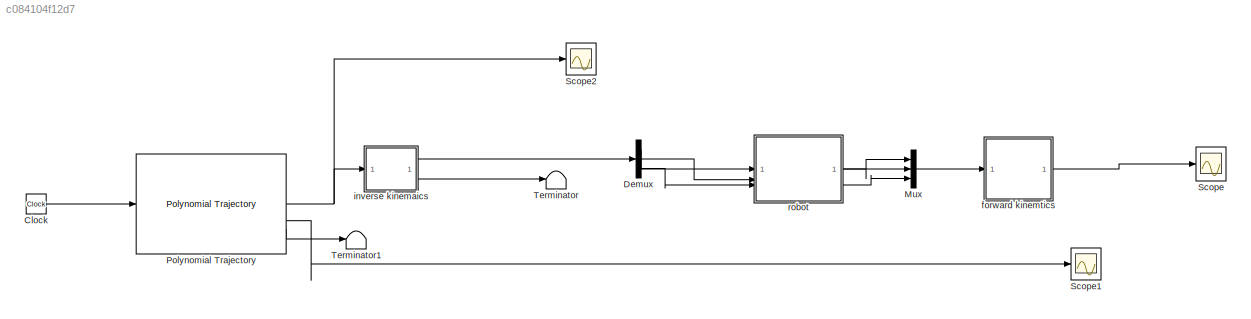
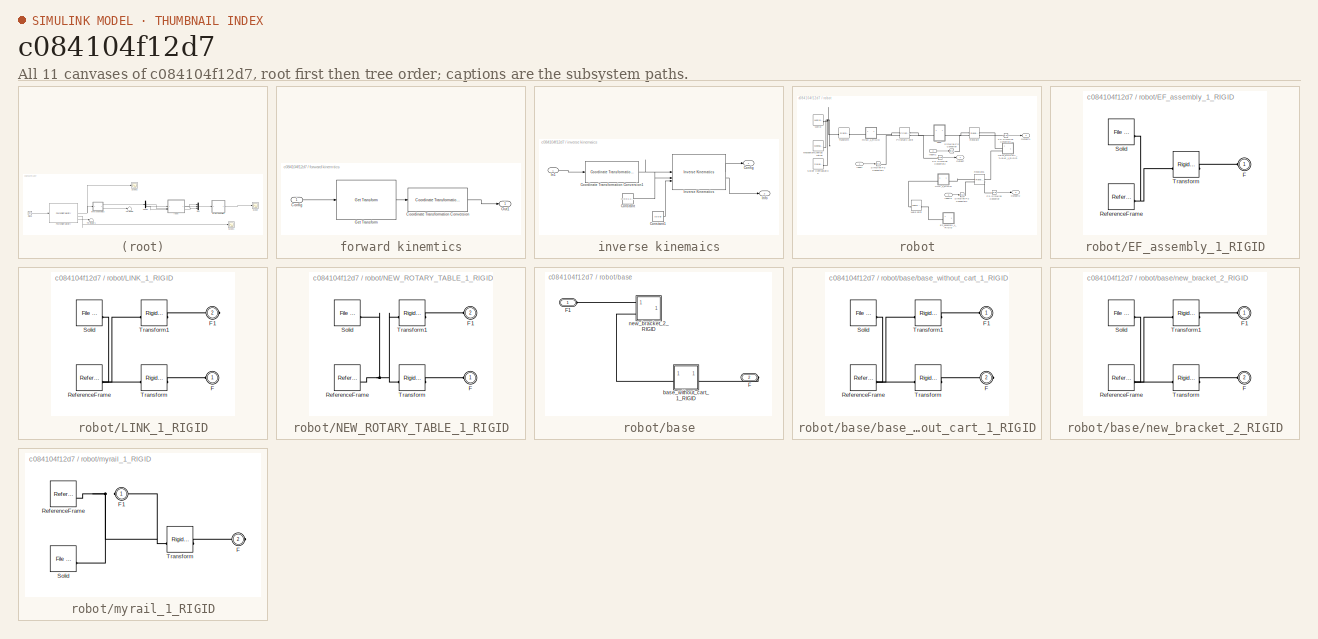
[diagram: thumbnail index - all 11 canvases of the model, root first then tree order]
MODEL slx_c084104f12d7
KIND model
CONFIG AbsTol = auto
CONFIG EnableMultiTasking = off
CONFIG FixedStep = auto
CONFIG MaxStep = auto
CONFIG MinStep = auto
CONFIG RelTol = 1e-3
CONFIG SampleTimeConstraint = Unconstrained
CONFIG SolverName = VariableStepAuto
CONFIG StartTime = 0.0
CONFIG StopTime = 4.5
BLOCK [Clock] Clock
BLOCK [Demux] Demux
  Outputs = 3
BLOCK [Mux] Mux
  DisplayOption = bar
  Inputs = 3
BLOCK [Reference] Polynomial Trajectory  REF=robotcorelib/Polynomial Trajectory
  LibrarySourceBlock = robotutilslib/Polynomial Trajectory
  SourceBlock = robotcorelib/Polynomial Trajectory
  SourceType = robotics.slcore.internal.block.PolyTrajSys
BLOCK [Scope] Scope
  Floating = off
  NumInputPorts = 1
  ScopeSpecificationString = Simulink.scopes.TimeScopeBlockCfg('CurrentConfiguration', extmgr.ConfigurationSet(extmgr.Configuration('Core','General UI',true),extmgr.Configuration('Core','Source UI',true),extmgr.Configuration('Sources','WiredSimulink',true),extmgr.Configuration('Visuals','Time Domain',true,'SerializedDisplays',{struct('MinYLimReal','-0.01605','MaxYLimReal','0.39631','YLabelReal','','MinYLimMag','0.00000','MaxY...<+1485ch>
BLOCK [Scope] Scope1
  Floating = off
  NumInputPorts = 1
  ScopeSpecificationString = Simulink.scopes.TimeScopeBlockCfg('CurrentConfiguration', extmgr.ConfigurationSet(extmgr.Configuration('Core','General UI',true),extmgr.Configuration('Core','Source UI',true),extmgr.Configuration('Sources','WiredSimulink',true,'DataLoggingVariableName','ScopeData1'),extmgr.Configuration('Visuals','Time Domain',true,'SerializedDisplays',{struct('MinYLimReal','-0.78375','MaxYLimReal','0.45375','YLab...<+1473ch>
BLOCK [Scope] Scope2
  Floating = off
  NumInputPorts = 1
  ScopeSpecificationString = Simulink.scopes.TimeScopeBlockCfg('CurrentConfiguration', extmgr.ConfigurationSet(extmgr.Configuration('Core','General UI',true),extmgr.Configuration('Core','Source UI',true),extmgr.Configuration('Sources','WiredSimulink',true,'DataLoggingVariableName','ScopeData1'),extmgr.Configuration('Visuals','Time Domain',true,'SerializedDisplays',{struct('MinYLimReal','-0.18625','MaxYLimReal','0.57625','YLab...<+1473ch>
BLOCK [Terminator] Terminator
BLOCK [Terminator] Terminator1
BLOCK [SubSystem] forward kinemtics
BLOCK [Inport] forward kinemtics/Config
BLOCK [Reference] forward kinemtics/Coordinate Transformation Conversion  REF=robotcorelib/Coordinate Transformation Conversion
  LibrarySourceBlock = robotutilslib/Coordinate Transformation Conversion
  SourceBlock = robotcorelib/Coordinate Transformation Conversion
  SourceType = robotics.slcore.internal.block.CoordinateTransformationConversion
BLOCK [Reference] forward kinemtics/Get Transform  REF=robotmaniplib/Get Transform
  SourceBlock = robotmaniplib/Get Transform
  SourceType = Get Transform
BLOCK [Outport] forward kinemtics/Out1
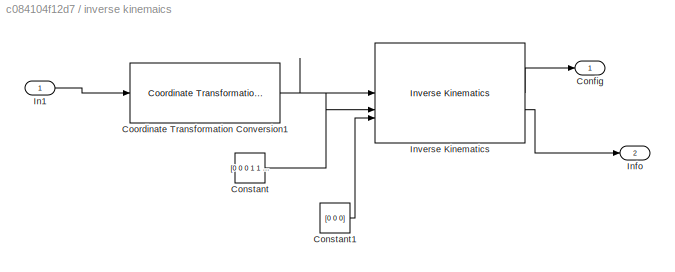
BLOCK [SubSystem] inverse kinemaics
BLOCK [Outport] inverse kinemaics/Config
BLOCK [Constant] inverse kinemaics/Constant
  Value = [0 0 0 1 1 1 ]
BLOCK [Constant] inverse kinemaics/Constant1
  Value = [0 0 0]
BLOCK [Reference] inverse kinemaics/Coordinate Transformation Conversion1  REF=robotcorelib/Coordinate Transformation Conversion
  LibrarySourceBlock = robotutilslib/Coordinate Transformation Conversion
  SourceBlock = robotcorelib/Coordinate Transformation Conversion
  SourceType = robotics.slcore.internal.block.CoordinateTransformationConversion
BLOCK [Inport] inverse kinemaics/In1
BLOCK [Outport] inverse kinemaics/Info
  Port = 2
BLOCK [Reference] inverse kinemaics/Inverse Kinematics  REF=robotmaniplib/Inverse Kinematics
  SourceBlock = robotmaniplib/Inverse Kinematics
  SourceType = Inverse Kinematics
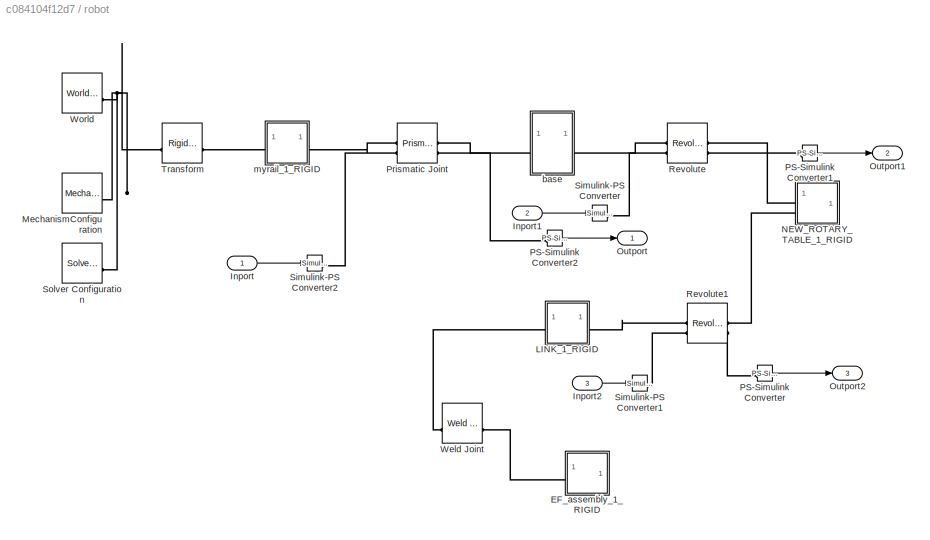
BLOCK [SubSystem] robot
BLOCK [SubSystem] robot/EF_assembly_1_RIGID
BLOCK [PMIOPort] robot/EF_assembly_1_RIGID/F
  Side = Left
BLOCK [Reference] robot/EF_assembly_1_RIGID/ReferenceFrame  REF=sm_lib/Frames and
Transforms/Reference
Frame
  SourceBlock = sm_lib/Frames and\nTransforms/Reference\nFrame
  SourceType = Reference\nFrame
BLOCK [Reference] robot/EF_assembly_1_RIGID/Solid  REF=sm_lib/Body Elements/File Solid
  SourceBlock = sm_lib/Body Elements/File Solid
  SourceType = File Solid
BLOCK [Reference] robot/EF_assembly_1_RIGID/Transform  REF=sm_lib/Frames and
Transforms/Rigid
Transform
  SourceBlock = sm_lib/Frames and\nTransforms/Rigid\nTransform
  SourceType = Rigid\nTransform
BLOCK [Inport] robot/Inport
BLOCK [Inport] robot/Inport1
  Port = 2
BLOCK [Inport] robot/Inport2
  Port = 3
BLOCK [SubSystem] robot/LINK_1_RIGID
BLOCK [PMIOPort] robot/LINK_1_RIGID/F
  Side = Left
BLOCK [PMIOPort] robot/LINK_1_RIGID/F1
  Port = 2
  Side = Right
BLOCK [Reference] robot/LINK_1_RIGID/ReferenceFrame  REF=sm_lib/Frames and
Transforms/Reference
Frame
  SourceBlock = sm_lib/Frames and\nTransforms/Reference\nFrame
  SourceType = Reference\nFrame
BLOCK [Reference] robot/LINK_1_RIGID/Solid  REF=sm_lib/Body Elements/File Solid
  SourceBlock = sm_lib/Body Elements/File Solid
  SourceType = File Solid
BLOCK [Reference] robot/LINK_1_RIGID/Transform  REF=sm_lib/Frames and
Transforms/Rigid
Transform
  SourceBlock = sm_lib/Frames and\nTransforms/Rigid\nTransform
  SourceType = Rigid\nTransform
BLOCK [Reference] robot/LINK_1_RIGID/Transform1  REF=sm_lib/Frames and
Transforms/Rigid
Transform
  SourceBlock = sm_lib/Frames and\nTransforms/Rigid\nTransform
  SourceType = Rigid\nTransform
BLOCK [Reference] robot/MechanismConfiguration  REF=sm_lib/Utilities/Mechanism
Configuration
  SourceBlock = sm_lib/Utilities/Mechanism\nConfiguration
  SourceType = Mechanism\nConfiguration
BLOCK [SubSystem] robot/NEW_ROTARY_TABLE_1_RIGID
BLOCK [PMIOPort] robot/NEW_ROTARY_TABLE_1_RIGID/F
  Side = Left
BLOCK [PMIOPort] robot/NEW_ROTARY_TABLE_1_RIGID/F1
  Port = 2
  Side = Left
BLOCK [Reference] robot/NEW_ROTARY_TABLE_1_RIGID/ReferenceFrame  REF=sm_lib/Frames and
Transforms/Reference
Frame
  SourceBlock = sm_lib/Frames and\nTransforms/Reference\nFrame
  SourceType = Reference\nFrame
BLOCK [Reference] robot/NEW_ROTARY_TABLE_1_RIGID/Solid  REF=sm_lib/Body Elements/File Solid
  SourceBlock = sm_lib/Body Elements/File Solid
  SourceType = File Solid
BLOCK [Reference] robot/NEW_ROTARY_TABLE_1_RIGID/Transform  REF=sm_lib/Frames and
Transforms/Rigid
Transform
  SourceBlock = sm_lib/Frames and\nTransforms/Rigid\nTransform
  SourceType = Rigid\nTransform
BLOCK [Reference] robot/NEW_ROTARY_TABLE_1_RIGID/Transform1  REF=sm_lib/Frames and
Transforms/Rigid
Transform
  SourceBlock = sm_lib/Frames and\nTransforms/Rigid\nTransform
  SourceType = Rigid\nTransform
BLOCK [Outport] robot/Outport
BLOCK [Outport] robot/Outport1
  Port = 2
BLOCK [Outport] robot/Outport2
  Port = 3
BLOCK [Reference] robot/PS-Simulink Converter  REF=nesl_utility/PS-Simulink
Converter
  SourceBlock = nesl_utility/PS-Simulink\nConverter
  SourceType = PS-Simulink\nConverter
BLOCK [Reference] robot/PS-Simulink Converter1  REF=nesl_utility/PS-Simulink
Converter
  SourceBlock = nesl_utility/PS-Simulink\nConverter
  SourceType = PS-Simulink\nConverter
BLOCK [Reference] robot/PS-Simulink Converter2  REF=nesl_utility/PS-Simulink
Converter
  SourceBlock = nesl_utility/PS-Simulink\nConverter
  SourceType = PS-Simulink\nConverter
BLOCK [Reference] robot/Prismatic Joint  REF=sm_lib/Joints/Prismatic
Joint
  SourceBlock = sm_lib/Joints/Prismatic\nJoint
  SourceType = Prismatic\nJoint
BLOCK [Reference] robot/Revolute  REF=sm_lib/Joints/Revolute Joint
  SourceBlock = sm_lib/Joints/Revolute Joint
  SourceType = Revolute Joint
BLOCK [Reference] robot/Revolute1  REF=sm_lib/Joints/Revolute Joint
  SourceBlock = sm_lib/Joints/Revolute Joint
  SourceType = Revolute Joint
BLOCK [Reference] robot/Simulink-PS Converter  REF=nesl_utility/Simulink-PS
Converter
  SourceBlock = nesl_utility/Simulink-PS\nConverter
  SourceType = Simulink-PS\nConverter
BLOCK [Reference] robot/Simulink-PS Converter1  REF=nesl_utility/Simulink-PS
Converter
  SourceBlock = nesl_utility/Simulink-PS\nConverter
  SourceType = Simulink-PS\nConverter
BLOCK [Reference] robot/Simulink-PS Converter2  REF=nesl_utility/Simulink-PS
Converter
  SourceBlock = nesl_utility/Simulink-PS\nConverter
  SourceType = Simulink-PS\nConverter
BLOCK [Reference] robot/Solver Configuration  REF=nesl_utility/Solver
Configuration
  SourceBlock = nesl_utility/Solver\nConfiguration
  SourceType = Solver\nConfiguration
BLOCK [Reference] robot/Transform  REF=sm_lib/Frames and
Transforms/Rigid
Transform
  SourceBlock = sm_lib/Frames and\nTransforms/Rigid\nTransform
  SourceType = Rigid\nTransform
BLOCK [Reference] robot/Weld Joint  REF=sm_lib/Joints/Weld Joint
  SourceBlock = sm_lib/Joints/Weld Joint
  SourceType = Weld Joint
BLOCK [Reference] robot/World  REF=sm_lib/Frames and
Transforms/World Frame
  SourceBlock = sm_lib/Frames and\nTransforms/World Frame
  SourceType = World Frame
BLOCK [SubSystem] robot/base
BLOCK [PMIOPort] robot/base/F
  Port = 2
  Side = Right
BLOCK [PMIOPort] robot/base/F1
  Side = Left
BLOCK [SubSystem] robot/base/base_without_cart_1_RIGID
BLOCK [PMIOPort] robot/base/base_without_cart_1_RIGID/F
  Port = 2
  Side = Right
BLOCK [PMIOPort] robot/base/base_without_cart_1_RIGID/F1
  Side = Left
BLOCK [Reference] robot/base/base_without_cart_1_RIGID/ReferenceFrame  REF=sm_lib/Frames and
Transforms/Reference
Frame
  SourceBlock = sm_lib/Frames and\nTransforms/Reference\nFrame
  SourceType = Reference\nFrame
BLOCK [Reference] robot/base/base_without_cart_1_RIGID/Solid  REF=sm_lib/Body Elements/File Solid
  SourceBlock = sm_lib/Body Elements/File Solid
  SourceType = File Solid
BLOCK [Reference] robot/base/base_without_cart_1_RIGID/Transform  REF=sm_lib/Frames and
Transforms/Rigid
Transform
  SourceBlock = sm_lib/Frames and\nTransforms/Rigid\nTransform
  SourceType = Rigid\nTransform
BLOCK [Reference] robot/base/base_without_cart_1_RIGID/Transform1  REF=sm_lib/Frames and
Transforms/Rigid
Transform
  SourceBlock = sm_lib/Frames and\nTransforms/Rigid\nTransform
  SourceType = Rigid\nTransform
BLOCK [SubSystem] robot/base/new_bracket_2_RIGID
BLOCK [PMIOPort] robot/base/new_bracket_2_RIGID/F
  Port = 2
  Side = Left
BLOCK [PMIOPort] robot/base/new_bracket_2_RIGID/F1
  Side = Left
BLOCK [Reference] robot/base/new_bracket_2_RIGID/ReferenceFrame  REF=sm_lib/Frames and
Transforms/Reference
Frame
  SourceBlock = sm_lib/Frames and\nTransforms/Reference\nFrame
  SourceType = Reference\nFrame
BLOCK [Reference] robot/base/new_bracket_2_RIGID/Solid  REF=sm_lib/Body Elements/File Solid
  SourceBlock = sm_lib/Body Elements/File Solid
  SourceType = File Solid
BLOCK [Reference] robot/base/new_bracket_2_RIGID/Transform  REF=sm_lib/Frames and
Transforms/Rigid
Transform
  SourceBlock = sm_lib/Frames and\nTransforms/Rigid\nTransform
  SourceType = Rigid\nTransform
BLOCK [Reference] robot/base/new_bracket_2_RIGID/Transform1  REF=sm_lib/Frames and
Transforms/Rigid
Transform
  SourceBlock = sm_lib/Frames and\nTransforms/Rigid\nTransform
  SourceType = Rigid\nTransform
BLOCK [SubSystem] robot/myrail_1_RIGID
BLOCK [PMIOPort] robot/myrail_1_RIGID/F
  Port = 2
  Side = Right
BLOCK [PMIOPort] robot/myrail_1_RIGID/F1
  Side = Left
BLOCK [Reference] robot/myrail_1_RIGID/ReferenceFrame  REF=sm_lib/Frames and
Transforms/Reference
Frame
  SourceBlock = sm_lib/Frames and\nTransforms/Reference\nFrame
  SourceType = Reference\nFrame
BLOCK [Reference] robot/myrail_1_RIGID/Solid  REF=sm_lib/Body Elements/File Solid
  SourceBlock = sm_lib/Body Elements/File Solid
  SourceType = File Solid
BLOCK [Reference] robot/myrail_1_RIGID/Transform  REF=sm_lib/Frames and
Transforms/Rigid
Transform
  SourceBlock = sm_lib/Frames and\nTransforms/Rigid\nTransform
  SourceType = Rigid\nTransform
LINE Clock:1 -> Polynomial Trajectory:1
LINE Demux:1 -> robot:1
LINE Demux:2 -> robot:2
LINE Demux:3 -> robot:3
LINE Mux:1 -> forward kinemtics:1
NET Polynomial Trajectory:1 -> Scope2:1, inverse kinemaics:1
LINE Polynomial Trajectory:2 -> Scope1:1
LINE Polynomial Trajectory:3 -> Terminator1:1
LINE forward kinemtics/Config:1 -> forward kinemtics/Get Transform:1
LINE forward kinemtics/Coordinate Transformation Conversion:1 -> forward kinemtics/Out1:1
LINE forward kinemtics/Get Transform:1 -> forward kinemtics/Coordinate Transformation Conversion:1
LINE forward kinemtics:1 -> Scope:1
LINE inverse kinemaics/Constant1:1 -> inverse kinemaics/Inverse Kinematics:3
LINE inverse kinemaics/Constant:1 -> inverse kinemaics/Inverse Kinematics:2
LINE inverse kinemaics/Coordinate Transformation Conversion1:1 -> inverse kinemaics/Inverse Kinematics:1
LINE inverse kinemaics/In1:1 -> inverse kinemaics/Coordinate Transformation Conversion1:1
LINE inverse kinemaics/Inverse Kinematics:1 -> inverse kinemaics/Config:1
LINE inverse kinemaics/Inverse Kinematics:2 -> inverse kinemaics/Info:1
LINE inverse kinemaics:1 -> Demux:1
LINE inverse kinemaics:2 -> Terminator:1
LINE robot/Inport1:1 -> robot/Simulink-PS Converter:1
LINE robot/Inport2:1 -> robot/Simulink-PS Converter1:1
LINE robot/Inport:1 -> robot/Simulink-PS Converter2:1
LINE robot/PS-Simulink Converter1:1 -> robot/Outport1:1
LINE robot/PS-Simulink Converter2:1 -> robot/Outport:1
LINE robot/PS-Simulink Converter:1 -> robot/Outport2:1
LINE robot:1 -> Mux:1
LINE robot:2 -> Mux:2
LINE robot:3 -> Mux:3
PLINE robot/EF_assembly_1_RIGID/F:RConn1 -- robot/EF_assembly_1_RIGID/Transform:RConn1
PNET net1: robot/EF_assembly_1_RIGID/ReferenceFrame:RConn1 -- robot/EF_assembly_1_RIGID/Solid:RConn1 -- robot/EF_assembly_1_RIGID/Transform:LConn1
PLINE robot/EF_assembly_1_RIGID:LConn1 -- robot/Weld Joint:RConn1
PLINE robot/LINK_1_RIGID/F1:RConn1 -- robot/LINK_1_RIGID/Transform1:RConn1
PLINE robot/LINK_1_RIGID/F:RConn1 -- robot/LINK_1_RIGID/Transform:RConn1
PNET net2: robot/LINK_1_RIGID/ReferenceFrame:RConn1 -- robot/LINK_1_RIGID/Solid:RConn1 -- robot/LINK_1_RIGID/Transform1:LConn1 -- robot/LINK_1_RIGID/Transform:LConn1
PLINE robot/LINK_1_RIGID:LConn1 -- robot/Weld Joint:LConn1
PLINE robot/LINK_1_RIGID:RConn1 -- robot/Revolute1:LConn1
PNET net3: robot/MechanismConfiguration:RConn1 -- robot/Solver Configuration:RConn1 -- robot/Transform:LConn1 -- robot/World:RConn1
PLINE robot/NEW_ROTARY_TABLE_1_RIGID/F1:RConn1 -- robot/NEW_ROTARY_TABLE_1_RIGID/Transform1:RConn1
PLINE robot/NEW_ROTARY_TABLE_1_RIGID/F:RConn1 -- robot/NEW_ROTARY_TABLE_1_RIGID/Transform:RConn1
PNET net4: robot/NEW_ROTARY_TABLE_1_RIGID/ReferenceFrame:RConn1 -- robot/NEW_ROTARY_TABLE_1_RIGID/Solid:RConn1 -- robot/NEW_ROTARY_TABLE_1_RIGID/Transform1:LConn1 -- robot/NEW_ROTARY_TABLE_1_RIGID/Transform:LConn1
PLINE robot/NEW_ROTARY_TABLE_1_RIGID:LConn1 -- robot/Revolute:RConn1
PLINE robot/NEW_ROTARY_TABLE_1_RIGID:LConn2 -- robot/Revolute1:RConn1
PLINE robot/PS-Simulink Converter1:LConn1 -- robot/Revolute:RConn2
PLINE robot/PS-Simulink Converter2:LConn1 -- robot/Prismatic Joint:RConn2
PLINE robot/PS-Simulink Converter:LConn1 -- robot/Revolute1:RConn2
PLINE robot/Prismatic Joint:LConn1 -- robot/myrail_1_RIGID:RConn1
PLINE robot/Prismatic Joint:LConn2 -- robot/Simulink-PS Converter2:RConn1
PLINE robot/Prismatic Joint:RConn1 -- robot/base:LConn1
PLINE robot/Revolute1:LConn2 -- robot/Simulink-PS Converter1:RConn1
PLINE robot/Revolute:LConn1 -- robot/base:RConn1
PLINE robot/Revolute:LConn2 -- robot/Simulink-PS Converter:RConn1
PLINE robot/Transform:RConn1 -- robot/myrail_1_RIGID:LConn1
PLINE robot/base/F1:RConn1 -- robot/base/new_bracket_2_RIGID:LConn1
PLINE robot/base/F:RConn1 -- robot/base/base_without_cart_1_RIGID:RConn1
PLINE robot/base/base_without_cart_1_RIGID/F1:RConn1 -- robot/base/base_without_cart_1_RIGID/Transform1:RConn1
PLINE robot/base/base_without_cart_1_RIGID/F:RConn1 -- robot/base/base_without_cart_1_RIGID/Transform:RConn1
PNET net5: robot/base/base_without_cart_1_RIGID/ReferenceFrame:RConn1 -- robot/base/base_without_cart_1_RIGID/Solid:RConn1 -- robot/base/base_without_cart_1_RIGID/Transform1:LConn1 -- robot/base/base_without_cart_1_RIGID/Transform:LConn1
PLINE robot/base/base_without_cart_1_RIGID:LConn1 -- robot/base/new_bracket_2_RIGID:LConn2
PLINE robot/base/new_bracket_2_RIGID/F1:RConn1 -- robot/base/new_bracket_2_RIGID/Transform1:RConn1
PLINE robot/base/new_bracket_2_RIGID/F:RConn1 -- robot/base/new_bracket_2_RIGID/Transform:RConn1
PNET net6: robot/base/new_bracket_2_RIGID/ReferenceFrame:RConn1 -- robot/base/new_bracket_2_RIGID/Solid:RConn1 -- robot/base/new_bracket_2_RIGID/Transform1:LConn1 -- robot/base/new_bracket_2_RIGID/Transform:LConn1
PNET net7: robot/myrail_1_RIGID/F1:RConn1 -- robot/myrail_1_RIGID/ReferenceFrame:RConn1 -- robot/myrail_1_RIGID/Solid:RConn1 -- robot/myrail_1_RIGID/Transform:LConn1
PLINE robot/myrail_1_RIGID/F:RConn1 -- robot/myrail_1_RIGID/Transform:RConn1
note: NET lines group one-source signal fan-out (src -> all destinations, sorted); 1:1 wires keep LINE; PNET lines group multi-terminal physical nets as a canonical sorted terminal list (undirected conserving connections); 2-terminal nets keep the pairwise PLINE form
